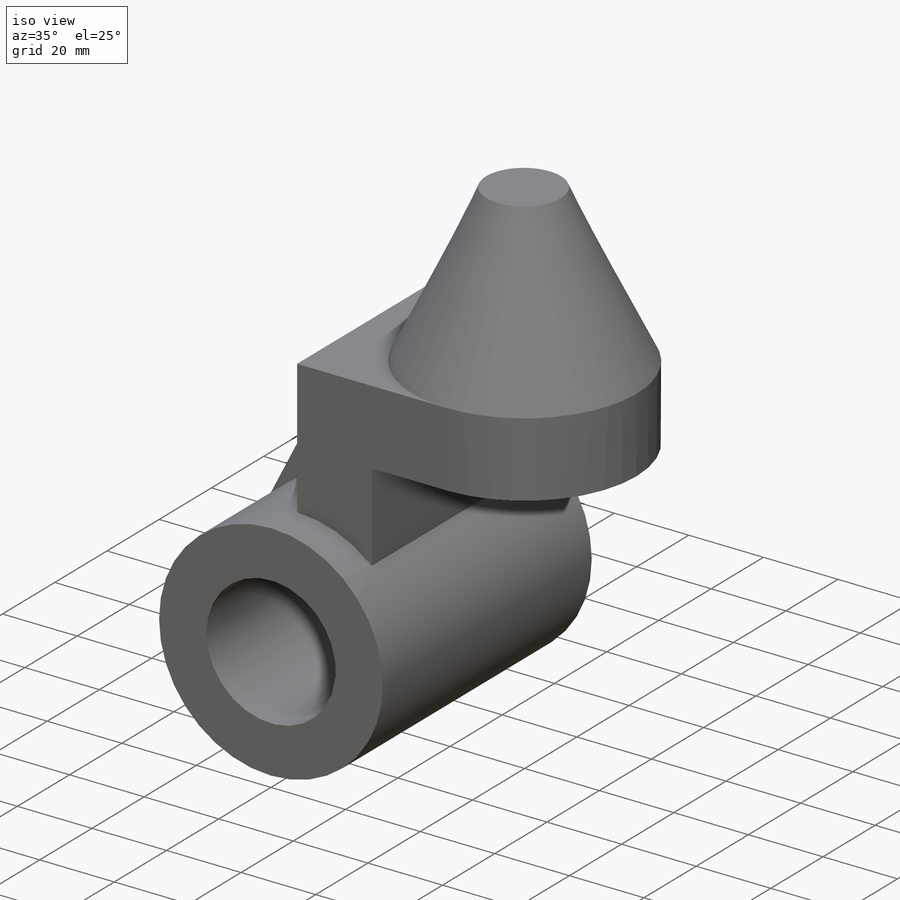
[diagram: iso view]
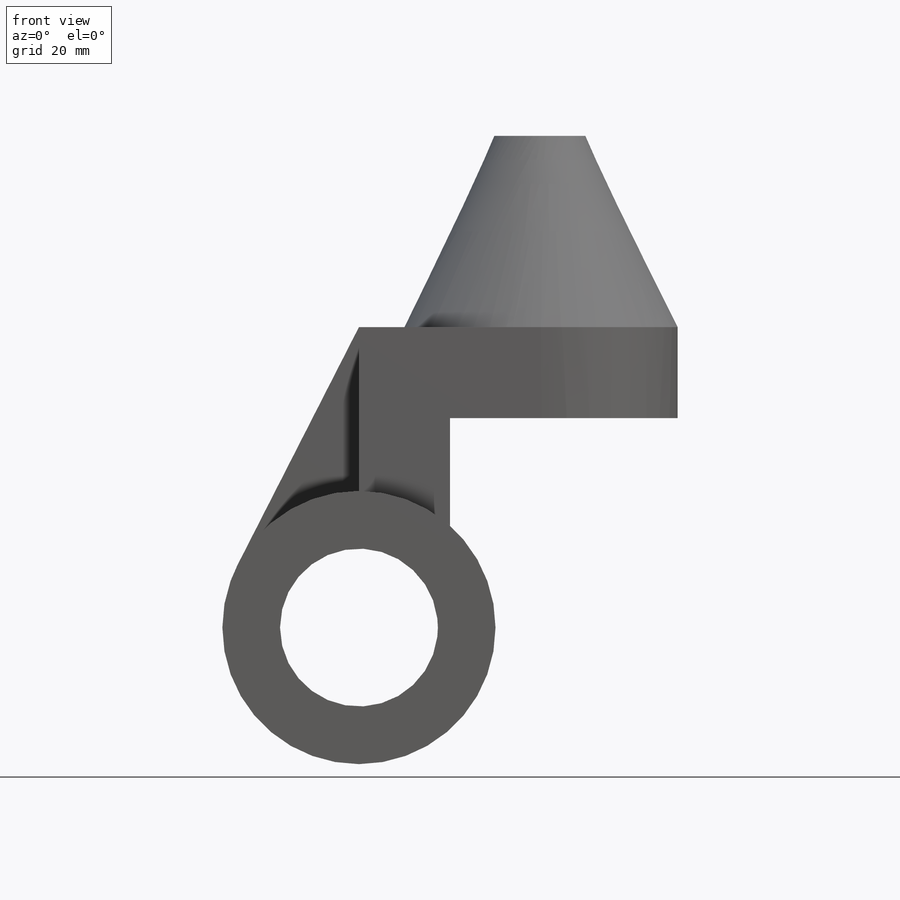
[diagram: front view]
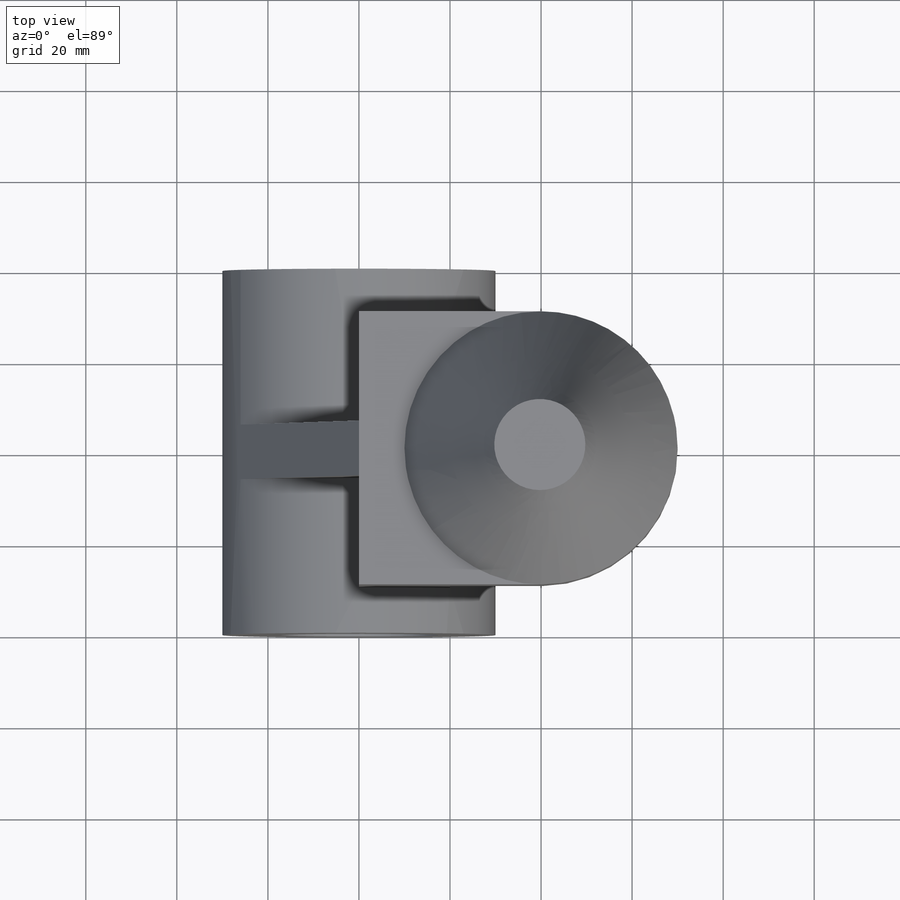
[diagram: top view]
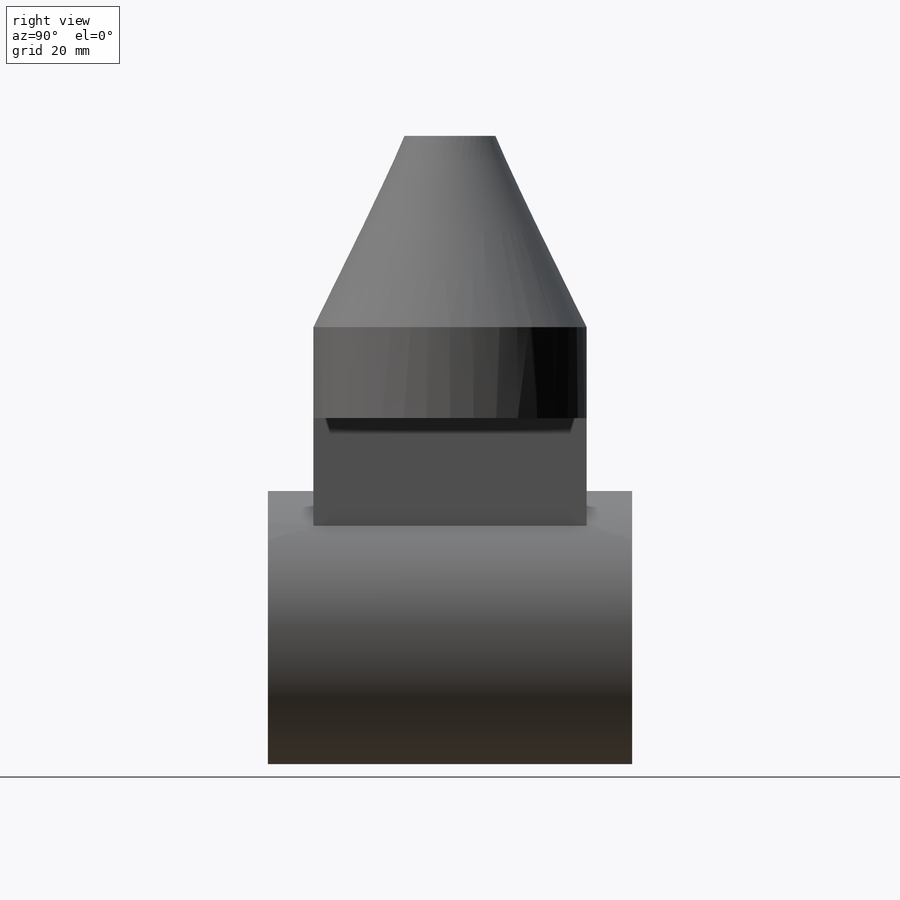
[diagram: right view]
SOLIDWORKS PART (.sldprt)
format: sldprt  version: not decoded by parser v0  size: 377,856 bytes
history: native  units: mm
features: sketch x6, extrude x4, plane x2, material x1 (+12 scaffold rows collapsed)
feature tree (25):
  scaffold x12  (default folders/planes/origin — collapsed)
  material  "Material <not specified>"
  sketch  "Sketch1"  dims[D1=~34.671629mm D2=60.0mm]
  extrude  "Boss-Extrude1"  Depth=80mm
  sketch  "Sketch3"  dims[D1=20.0mm D2=20.0mm D3=36.0mm D4=40.0mm]
  extrude  "Boss-Extrude2"  Depth=60mm
  sketch  "Sketch4"  dims[D1=60.0mm]
  extrude  "Boss-Extrude3"  Depth=20mm
  sketch  "Sketch6"  dims[D1=~52.363636mm]
  extrude  "Boss-Extrude4"  Depth=12mm
  sketch  "3DSketch1"  dims[c1.D2=60.0mm c1.D1=~50.533213mm c2.D2=50.0mm c2.D1=~32.011048mm c2.D5=40.0mm c3.D2=~12.831842mm c3.D1=20.0mm c3.D3=~27.822811mm c4.D1=20.0mm c4.D4=25.0mm c5.D1=~80.955821mm c5.D3=40.0mm c6.D1=40.0mm c6.D3=30.0mm]
  plane  "Plane1"  Offset=68mm
  plane  "Plane2"  Offset=40mm
  sketch  "Sketch7"  dims[D1=20.0mm]
decode coverage: 10 of 10 modeling features carry decoded parameters
note: ~ marks probable driven/reference dimensions
note: suppression state not decoded; provenance and decode notes live in map.json
